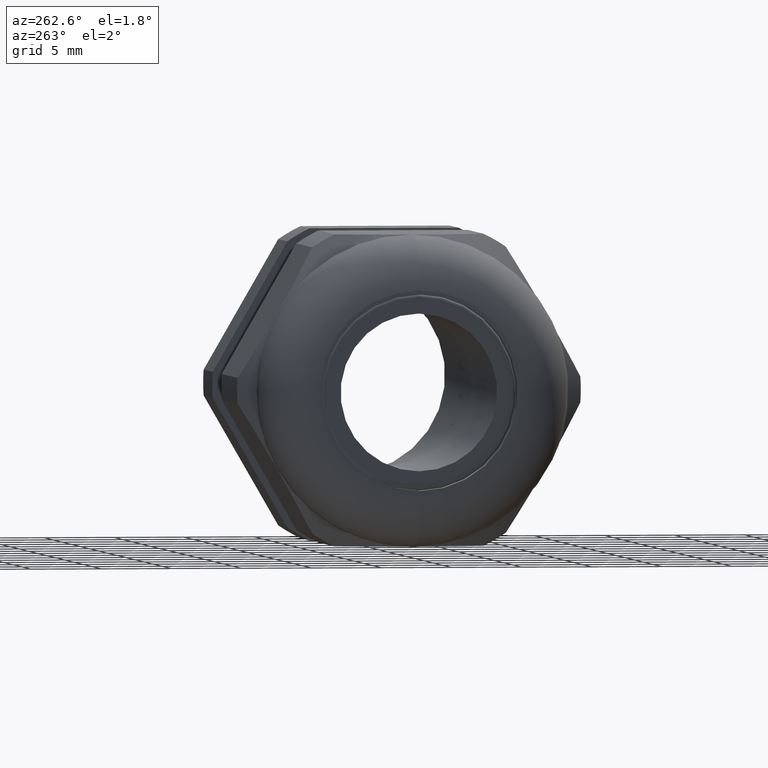
[diagram: clean part render]
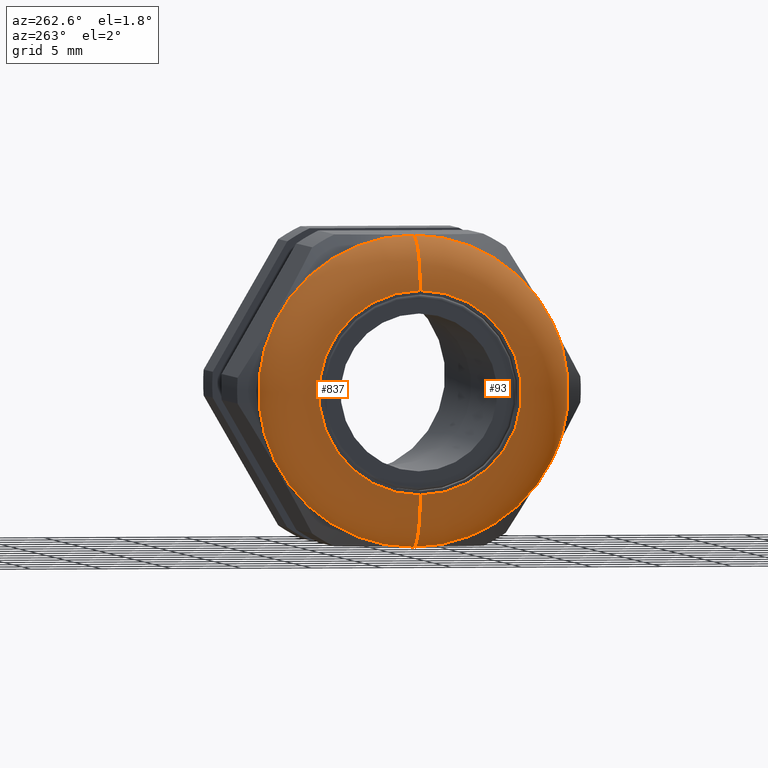
[diagram: same view with one multi-face feature highlighted, each face labeled with its STEP entity id]
A machine part, auxiliary view. The highlighted faces form ONE feature: a constant-radius fillet chain: 2 tangent blend faces with common blend radius 3.81 mm. The faces share edges in the B-rep.
Their STEP definitions:
[1] entity #837 (Torus):
#835 = EDGE_LOOP ( 'NONE', ( #846, #889, #884, #891 ) ) ;
#836 = EDGE_CURVE ( 'NONE', #841, #890, #2631, .T. ) ;
#837 = ADVANCED_FACE ( 'NONE', ( #2627 ), #2626, .T. ) ;
#840 = EDGE_CURVE ( 'NONE', #841, #842, #2678, .T. ) ;
#841 = VERTEX_POINT ( 'NONE', #2673 ) ;
#842 = VERTEX_POINT ( 'NONE', #2672 ) ;
#846 = ORIENTED_EDGE ( 'NONE', *, *, #840, .F. ) ;
#884 = ORIENTED_EDGE ( 'NONE', *, *, #885, .F. ) ;
#885 = EDGE_CURVE ( 'NONE', #886, #890, #2732, .T. ) ;
#886 = VERTEX_POINT ( 'NONE', #2728 ) ;
#889 = ORIENTED_EDGE ( 'NONE', *, *, #836, .T. ) ;
#890 = VERTEX_POINT ( 'NONE', #2722 ) ;
#891 = ORIENTED_EDGE ( 'NONE', *, *, #892, .F. ) ;
#892 = EDGE_CURVE ( 'NONE', #842, #886, #2721, .T. ) ;
#2622 = DIRECTION ( 'NONE',  ( 0.0000000000000000000, 0.0000000000000000000, 1.000000000000000000 ) ) ;
#2623 = DIRECTION ( 'NONE',  ( -1.000000000000000000, 0.0000000000000000000, 0.0000000000000000000 ) ) ;
#2624 = CARTESIAN_POINT ( 'NONE',  ( -1.139999999999999900, 0.0000000000000000000, 0.0000000000000000000 ) ) ;
#2625 = AXIS2_PLACEMENT_3D ( 'NONE', #2624, #2623, #2622 ) ;
#2626 = TOROIDAL_SURFACE ( 'NONE', #2625, 0.2850000000000000300, 0.1499999999999999900 ) ;
#2627 = FACE_OUTER_BOUND ( 'NONE', #835, .T. ) ;
#2628 = DIRECTION ( 'NONE',  ( 0.0000000000000000000, -1.224646799147353000E-016, 1.000000000000000000 ) ) ;
#2629 = DIRECTION ( 'NONE',  ( 0.0000000000000000000, 1.000000000000000000, 1.224646799147353200E-016 ) ) ;
#2630 = AXIS2_PLACEMENT_3D ( 'NONE', #2637, #2629, #2628 ) ;
#2631 = CIRCLE ( 'NONE', #2630, 0.1499999999999999900 ) ;
#2637 = CARTESIAN_POINT ( 'NONE',  ( -1.139999999999999900, 3.490243377569956900E-017, -0.2850000000000000300 ) ) ;
#2672 = CARTESIAN_POINT ( 'NONE',  ( -1.139999999999999900, 5.327213576290986400E-017, 0.4350000000000000000 ) ) ;
#2673 = CARTESIAN_POINT ( 'NONE',  ( -1.139999999999999900, 0.0000000000000000000, -0.4350000000000000000 ) ) ;
#2674 = DIRECTION ( 'NONE',  ( 0.0000000000000000000, 0.0000000000000000000, 1.000000000000000000 ) ) ;
#2675 = DIRECTION ( 'NONE',  ( 1.000000000000000000, 0.0000000000000000000, 0.0000000000000000000 ) ) ;
#2676 = CARTESIAN_POINT ( 'NONE',  ( -1.139999999999999900, 0.0000000000000000000, 0.0000000000000000000 ) ) ;
#2677 = AXIS2_PLACEMENT_3D ( 'NONE', #2676, #2675, #2674 ) ;
#2678 = CIRCLE ( 'NONE', #2677, 0.4350000000000000000 ) ;
#2717 = DIRECTION ( 'NONE',  ( 0.0000000000000000000, 0.0000000000000000000, -1.000000000000000000 ) ) ;
#2718 = DIRECTION ( 'NONE',  ( 0.0000000000000000000, -1.000000000000000000, 0.0000000000000000000 ) ) ;
#2719 = CARTESIAN_POINT ( 'NONE',  ( -1.139999999999999900, 0.0000000000000000000, 0.2850000000000000300 ) ) ;
#2720 = AXIS2_PLACEMENT_3D ( 'NONE', #2719, #2718, #2717 ) ;
#2721 = CIRCLE ( 'NONE', #2720, 0.1499999999999999900 ) ;
#2722 = CARTESIAN_POINT ( 'NONE',  ( -1.289999999999999800, 4.408728476930471600E-017, -0.2850000000000000300 ) ) ;
#2728 = CARTESIAN_POINT ( 'NONE',  ( -1.289999999999999800, 0.0000000000000000000, 0.2850000000000000300 ) ) ;
#2729 = DIRECTION ( 'NONE',  ( 0.0000000000000000000, 0.0000000000000000000, 1.000000000000000000 ) ) ;
#2730 = DIRECTION ( 'NONE',  ( -1.000000000000000000, 0.0000000000000000000, 0.0000000000000000000 ) ) ;
#2731 = AXIS2_PLACEMENT_3D ( 'NONE', #2738, #2730, #2729 ) ;
#2732 = CIRCLE ( 'NONE', #2731, 0.2850000000000000300 ) ;
#2738 = CARTESIAN_POINT ( 'NONE',  ( -1.289999999999999800, 0.0000000000000000000, 0.0000000000000000000 ) ) ;
[2] entity #93 (Torus):
#93 = ADVANCED_FACE ( 'NONE', ( #1321 ), #1320, .T. ) ;
#94 = EDGE_LOOP ( 'NONE', ( #95, #96, #97, #98 ) ) ;
#95 = ORIENTED_EDGE ( 'NONE', *, *, #836, .F. ) ;
#96 = ORIENTED_EDGE ( 'NONE', *, *, #192, .F. ) ;
#97 = ORIENTED_EDGE ( 'NONE', *, *, #892, .T. ) ;
#98 = ORIENTED_EDGE ( 'NONE', *, *, #794, .F. ) ;
#192 = EDGE_CURVE ( 'NONE', #842, #841, #1447, .T. ) ;
#794 = EDGE_CURVE ( 'NONE', #890, #886, #2528, .T. ) ;
#836 = EDGE_CURVE ( 'NONE', #841, #890, #2631, .T. ) ;
#841 = VERTEX_POINT ( 'NONE', #2673 ) ;
#842 = VERTEX_POINT ( 'NONE', #2672 ) ;
#886 = VERTEX_POINT ( 'NONE', #2728 ) ;
#890 = VERTEX_POINT ( 'NONE', #2722 ) ;
#892 = EDGE_CURVE ( 'NONE', #842, #886, #2721, .T. ) ;
#1315 = DIRECTION ( 'NONE',  ( 0.0000000000000000000, 0.0000000000000000000, 1.000000000000000000 ) ) ;
#1316 = DIRECTION ( 'NONE',  ( -1.000000000000000000, 0.0000000000000000000, 0.0000000000000000000 ) ) ;
#1317 = CARTESIAN_POINT ( 'NONE',  ( -1.139999999999999900, 0.0000000000000000000, 0.0000000000000000000 ) ) ;
#1318 = AXIS2_PLACEMENT_3D ( 'NONE', #1317, #1316, #1315 ) ;
#1320 = TOROIDAL_SURFACE ( 'NONE', #1318, 0.2850000000000000300, 0.1499999999999999900 ) ;
#1321 = FACE_OUTER_BOUND ( 'NONE', #94, .T. ) ;
#1443 = DIRECTION ( 'NONE',  ( 0.0000000000000000000, 0.0000000000000000000, 1.000000000000000000 ) ) ;
#1444 = DIRECTION ( 'NONE',  ( 1.000000000000000000, 0.0000000000000000000, 0.0000000000000000000 ) ) ;
#1445 = CARTESIAN_POINT ( 'NONE',  ( -1.139999999999999900, 0.0000000000000000000, 0.0000000000000000000 ) ) ;
#1446 = AXIS2_PLACEMENT_3D ( 'NONE', #1445, #1444, #1443 ) ;
#1447 = CIRCLE ( 'NONE', #1446, 0.4350000000000000000 ) ;
#2524 = DIRECTION ( 'NONE',  ( 0.0000000000000000000, 0.0000000000000000000, 1.000000000000000000 ) ) ;
#2525 = DIRECTION ( 'NONE',  ( -1.000000000000000000, 0.0000000000000000000, 0.0000000000000000000 ) ) ;
#2526 = CARTESIAN_POINT ( 'NONE',  ( -1.289999999999999800, 0.0000000000000000000, 0.0000000000000000000 ) ) ;
#2527 = AXIS2_PLACEMENT_3D ( 'NONE', #2526, #2525, #2524 ) ;
#2528 = CIRCLE ( 'NONE', #2527, 0.2850000000000000300 ) ;
#2628 = DIRECTION ( 'NONE',  ( 0.0000000000000000000, -1.224646799147353000E-016, 1.000000000000000000 ) ) ;
#2629 = DIRECTION ( 'NONE',  ( 0.0000000000000000000, 1.000000000000000000, 1.224646799147353200E-016 ) ) ;
#2630 = AXIS2_PLACEMENT_3D ( 'NONE', #2637, #2629, #2628 ) ;
#2631 = CIRCLE ( 'NONE', #2630, 0.1499999999999999900 ) ;
#2637 = CARTESIAN_POINT ( 'NONE',  ( -1.139999999999999900, 3.490243377569956900E-017, -0.2850000000000000300 ) ) ;
#2672 = CARTESIAN_POINT ( 'NONE',  ( -1.139999999999999900, 5.327213576290986400E-017, 0.4350000000000000000 ) ) ;
#2673 = CARTESIAN_POINT ( 'NONE',  ( -1.139999999999999900, 0.0000000000000000000, -0.4350000000000000000 ) ) ;
#2717 = DIRECTION ( 'NONE',  ( 0.0000000000000000000, 0.0000000000000000000, -1.000000000000000000 ) ) ;
#2718 = DIRECTION ( 'NONE',  ( 0.0000000000000000000, -1.000000000000000000, 0.0000000000000000000 ) ) ;
#2719 = CARTESIAN_POINT ( 'NONE',  ( -1.139999999999999900, 0.0000000000000000000, 0.2850000000000000300 ) ) ;
#2720 = AXIS2_PLACEMENT_3D ( 'NONE', #2719, #2718, #2717 ) ;
#2721 = CIRCLE ( 'NONE', #2720, 0.1499999999999999900 ) ;
#2722 = CARTESIAN_POINT ( 'NONE',  ( -1.289999999999999800, 4.408728476930471600E-017, -0.2850000000000000300 ) ) ;
#2728 = CARTESIAN_POINT ( 'NONE',  ( -1.289999999999999800, 0.0000000000000000000, 0.2850000000000000300 ) ) ;